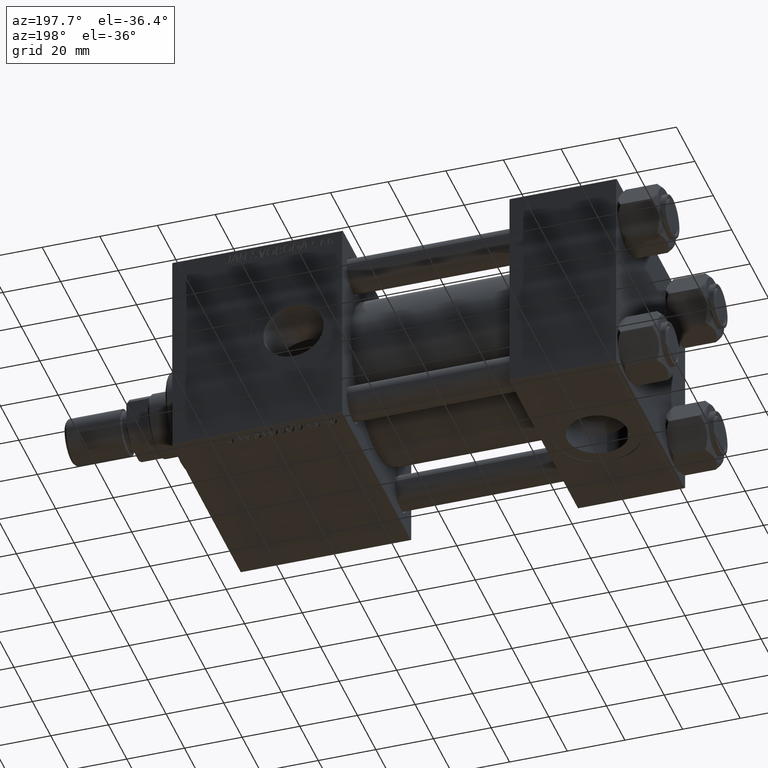
[diagram: clean part render]
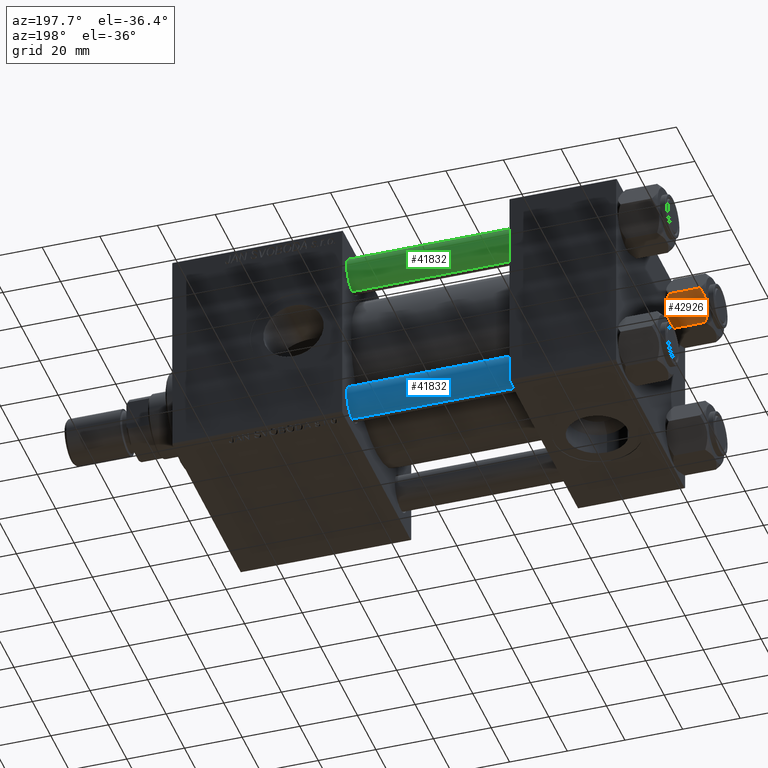
[diagram: same view with three faces highlighted in distinct colors, each labeled with its STEP entity id]
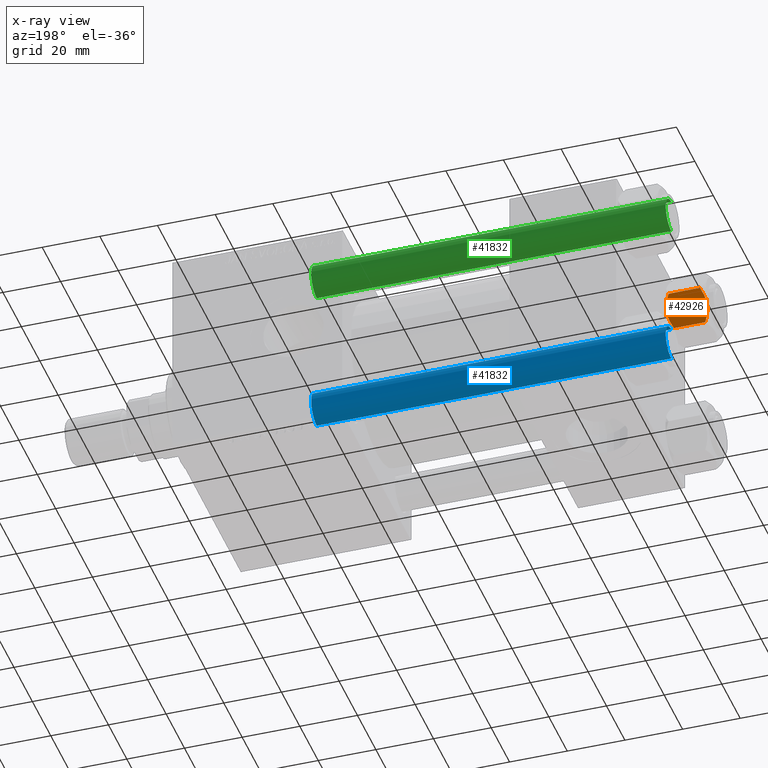
[diagram: x-ray of the same camera — body ghosted, the three highlighted faces saturated]
A machine part, auxiliary view with three faces highlighted in distinct colors.
The next image is the same camera in x-ray (body ghosted, the three faces saturated) — at least one of them is partly hidden behind the body in this view.
Their STEP definitions:

[orange] entity #42926 — the highlighted planar face has unit normal (0, -0.866, 0.5).
#74 = CARTESIAN_POINT ( 'NONE',  ( 4.900668367960796523, -10.06321519197517489, -12.87844331629023209 ) ) ;
#308 = CARTESIAN_POINT ( 'NONE',  ( -5.810000000000000497, -10.06321519197517844, -14.00000000000000000 ) ) ;
#1070 = VERTEX_POINT ( 'NONE', #41839 ) ;
#1527 = CARTESIAN_POINT ( 'NONE',  ( 1.502314598737159623E-15, -10.06321519197518199, 0.000000000000000000 ) ) ;
#2341 = DIRECTION ( 'NONE',  ( -1.492877345935290102E-16, 1.000000000000000000, 0.000000000000000000 ) ) ;
#2496 = EDGE_CURVE ( 'NONE', #8510, #28032, #19853, .T. ) ;
#3253 = CARTESIAN_POINT ( 'NONE',  ( -5.359707691559672860, -10.06321519197517844, -1.331638653804651851 ) ) ;
#3264 = LINE ( 'NONE', #41955, #13578 ) ;
#3867 = EDGE_CURVE ( 'NONE', #41476, #8510, #5160, .T. ) ;
#5160 = B_SPLINE_CURVE_WITH_KNOTS ( 'NONE', 3,
 ( #38758, #39020, #74, #8012, #23616, #46201, #17207, #9025 ),
 .UNSPECIFIED., .F., .F.,
 ( 4, 2, 2, 4 ),
 ( 0.01467889604968879332, 0.01619420351931635110, 0.01770951098894391063, 0.02074012592819902620 ),
 .UNSPECIFIED. ) ;
#7388 = CARTESIAN_POINT ( 'NONE',  ( -0.5112014849988886223, -10.06321519197517489, -13.99019602057109068 ) ) ;
#7880 = CARTESIAN_POINT ( 'NONE',  ( -3.960942496020602555, -10.06321519197517667, -13.28842716763895737 ) ) ;
#8002 = LINE ( 'NONE', #308, #9414 ) ;
#8012 = CARTESIAN_POINT ( 'NONE',  ( 3.958929922320422179, -10.06321519197517489, -13.25786014976459803 ) ) ;
#8510 = VERTEX_POINT ( 'NONE', #13466 ) ;
#9025 = CARTESIAN_POINT ( 'NONE',  ( 1.502314598737159820E-15, -10.06321519197518022, -14.00000000000000000 ) ) ;
#9414 = VECTOR ( 'NONE', #39256, 1000.000000000000000 ) ;
#9731 = CARTESIAN_POINT ( 'NONE',  ( -2.013954290287968352, -10.06321519197517844, -0.1570111679759963463 ) ) ;
#10394 = CARTESIAN_POINT ( 'NONE',  ( 1.772424303831126258, -10.06321519197517311, -0.1338870921722345175 ) ) ;
#10655 = CARTESIAN_POINT ( 'NONE',  ( 0.5112014849988879561, -10.06321519197517667, -0.009803979428909967431 ) ) ;
#10895 = CARTESIAN_POINT ( 'NONE',  ( 1.502314598737159623E-15, -10.06321519197518199, 0.000000000000000000 ) ) ;
#11664 = VERTEX_POINT ( 'NONE', #46272 ) ;
#13466 = CARTESIAN_POINT ( 'NONE',  ( 1.502314598737159820E-15, -10.06321519197518022, -14.00000000000000000 ) ) ;
#13562 = CARTESIAN_POINT ( 'NONE',  ( -4.900668367960793859, -10.06321519197517667, -1.121556683709771463 ) ) ;
#13578 = VECTOR ( 'NONE', #14273, 1000.000000000000000 ) ;
#13860 = DIRECTION ( 'NONE',  ( -1.000000000000000000, -1.492877345935290102E-16, 0.000000000000000000 ) ) ;
#13929 = EDGE_CURVE ( 'NONE', #28032, #1070, #8002, .T. ) ;
#14273 = DIRECTION ( 'NONE',  ( -0.000000000000000000, -0.000000000000000000, 1.000000000000000000 ) ) ;
#15244 = CARTESIAN_POINT ( 'NONE',  ( 5.810000000000000497, -10.06321519197517667, -1.556784808024811895 ) ) ;
#15317 = CARTESIAN_POINT ( 'NONE',  ( -2.508586450168039494, -10.06321519197517844, -13.70242473679676998 ) ) ;
#17207 = CARTESIAN_POINT ( 'NONE',  ( 1.020132157807625672, -10.06321519197517489, -14.00000000000000178 ) ) ;
#18541 = B_SPLINE_CURVE_WITH_KNOTS ( 'NONE', 3,
 ( #10895, #37781, #10655, #42157, #10394, #33911, #34164, #19330, #15244 ),
 .UNSPECIFIED., .F., .F.,
 ( 4, 2, 1, 2, 4 ),
 ( 0.02074012592819902273, 0.02149589804477578664, 0.02225167016135255402, 0.02376321439450608530, 0.02678630286081314441 ),
 .UNSPECIFIED. ) ;
#19220 = AXIS2_PLACEMENT_3D ( 'NONE', #48950, #2341, #13860 ) ;
#19330 = CARTESIAN_POINT ( 'NONE',  ( 4.908816193182381937, -10.06321519197517844, -1.106192904616003059 ) ) ;
#19853 = B_SPLINE_CURVE_WITH_KNOTS ( 'NONE', 3,
 ( #27074, #42977, #7388, #22987, #50398, #15317, #7880, #30905, #46578 ),
 .UNSPECIFIED., .F., .F.,
 ( 4, 2, 1, 2, 4 ),
 ( 0.02074012592819902620, 0.02149589804477579011, 0.02225167016135255749, 0.02376321439450608530, 0.02678630286081314441 ),
 .UNSPECIFIED. ) ;
#20276 = ORIENTED_EDGE ( 'NONE', *, *, #26743, .F. ) ;
#21799 = ORIENTED_EDGE ( 'NONE', *, *, #13929, .F. ) ;
#22646 = ORIENTED_EDGE ( 'NONE', *, *, #45616, .T. ) ;
#22987 = CARTESIAN_POINT ( 'NONE',  ( -1.018274738099085086, -10.06321519197517667, -13.95177257919929126 ) ) ;
#23616 = CARTESIAN_POINT ( 'NONE',  ( 3.474497094393254049, -10.06321519197517667, -13.42730390989572697 ) ) ;
#26658 = VERTEX_POINT ( 'NONE', #36356 ) ;
#26743 = EDGE_CURVE ( 'NONE', #1070, #11664, #41186, .T. ) ;
#27015 = ORIENTED_EDGE ( 'NONE', *, *, #2496, .F. ) ;
#27074 = CARTESIAN_POINT ( 'NONE',  ( 1.502314598737159820E-15, -10.06321519197518022, -14.00000000000000000 ) ) ;
#28032 = VERTEX_POINT ( 'NONE', #35565 ) ;
#28947 = FACE_OUTER_BOUND ( 'NONE', #40012, .T. ) ;
#30905 = CARTESIAN_POINT ( 'NONE',  ( -4.908816193182379273, -10.06321519197517667, -12.89380709538398939 ) ) ;
#31294 = ORIENTED_EDGE ( 'NONE', *, *, #3867, .F. ) ;
#32990 = CARTESIAN_POINT ( 'NONE',  ( -5.810000000000000497, -10.06321519197517844, -1.556784808024813893 ) ) ;
#33297 = PLANE ( 'NONE',  #19220 ) ;
#33911 = CARTESIAN_POINT ( 'NONE',  ( 2.508586450168040827, -10.06321519197517667, -0.2975752632032254708 ) ) ;
#34164 = CARTESIAN_POINT ( 'NONE',  ( 3.960942496020604331, -10.06321519197518022, -0.7115728323610380768 ) ) ;
#34568 = EDGE_CURVE ( 'NONE', #11664, #26658, #18541, .T. ) ;
#35565 = CARTESIAN_POINT ( 'NONE',  ( -5.810000000000000497, -10.06321519197517844, -12.44321519197518455 ) ) ;
#36356 = CARTESIAN_POINT ( 'NONE',  ( 5.810000000000000497, -10.06321519197517667, -1.556784808024811895 ) ) ;
#36611 = CARTESIAN_POINT ( 'NONE',  ( -3.958929922320420403, -10.06321519197517844, -0.7421398502353970805 ) ) ;
#36626 = CARTESIAN_POINT ( 'NONE',  ( 5.810000000000000497, -10.06321519197517667, -12.44321519197518633 ) ) ;
#37781 = CARTESIAN_POINT ( 'NONE',  ( 0.2543996698847484361, -10.06321519197517667, 4.398642095091581661E-15 ) ) ;
#38758 = CARTESIAN_POINT ( 'NONE',  ( 5.810000000000000497, -10.06321519197517667, -12.44321519197518633 ) ) ;
#39020 = CARTESIAN_POINT ( 'NONE',  ( 5.359707691559676412, -10.06321519197517844, -12.66836134619534882 ) ) ;
#39256 = DIRECTION ( 'NONE',  ( -0.000000000000000000, -0.000000000000000000, 1.000000000000000000 ) ) ;
#39738 = ORIENTED_EDGE ( 'NONE', *, *, #34568, .F. ) ;
#40012 = EDGE_LOOP ( 'NONE', ( #31294, #22646, #39738, #20276, #21799, #27015 ) ) ;
#41186 = B_SPLINE_CURVE_WITH_KNOTS ( 'NONE', 3,
 ( #32990, #3253, #13562, #36611, #49159, #9731, #41498, #1527 ),
 .UNSPECIFIED., .F., .F.,
 ( 4, 2, 2, 4 ),
 ( 0.01467889604968879332, 0.01619420351931635110, 0.01770951098894390716, 0.02074012592819902273 ),
 .UNSPECIFIED. ) ;
#41476 = VERTEX_POINT ( 'NONE', #36626 ) ;
#41498 = CARTESIAN_POINT ( 'NONE',  ( -1.020132157807625450, -10.06321519197517489, 4.052205619664572033E-15 ) ) ;
#41839 = CARTESIAN_POINT ( 'NONE',  ( -5.810000000000000497, -10.06321519197517844, -1.556784808024813893 ) ) ;
#41955 = CARTESIAN_POINT ( 'NONE',  ( 5.810000000000000497, -10.06321519197517667, -14.00000000000000000 ) ) ;
#42157 = CARTESIAN_POINT ( 'NONE',  ( 1.018274738099083976, -10.06321519197517667, -0.04822742080070548110 ) ) ;
#42926 = ADVANCED_FACE ( 'NONE', ( #28947 ), #33297, .F. ) ;
#42977 = CARTESIAN_POINT ( 'NONE',  ( -0.2543996698847483806, -10.06321519197517667, -14.00000000000000355 ) ) ;
#45616 = EDGE_CURVE ( 'NONE', #41476, #26658, #3264, .T. ) ;
#46201 = CARTESIAN_POINT ( 'NONE',  ( 2.013954290287967019, -10.06321519197517489, -13.84298883202400532 ) ) ;
#46272 = CARTESIAN_POINT ( 'NONE',  ( 1.502314598737159623E-15, -10.06321519197518199, 0.000000000000000000 ) ) ;
#46578 = CARTESIAN_POINT ( 'NONE',  ( -5.810000000000000497, -10.06321519197517844, -12.44321519197518455 ) ) ;
#48950 = CARTESIAN_POINT ( 'NONE',  ( 5.810000000000000497, -10.06321519197517667, -14.00000000000000000 ) ) ;
#49159 = CARTESIAN_POINT ( 'NONE',  ( -3.474497094393254937, -10.06321519197517844, -0.5726960901042742469 ) ) ;
#50398 = CARTESIAN_POINT ( 'NONE',  ( -1.772424303831128478, -10.06321519197517489, -13.86611290782776251 ) ) ;

[blue] entity #41832 — the highlighted cylindrical surface (edge-blend (fillet) strip) has radius 6 mm, axis along (1, -0, -0).
#2016 = ORIENTED_EDGE ( 'NONE', *, *, #31150, .T. ) ;
#2983 = EDGE_LOOP ( 'NONE', ( #2016, #43234, #30746, #24251 ) ) ;
#4662 = FACE_OUTER_BOUND ( 'NONE', #2983, .T. ) ;
#6452 = LINE ( 'NONE', #18477, #11774 ) ;
#7788 = AXIS2_PLACEMENT_3D ( 'NONE', #20274, #35887, #47679 ) ;
#7846 = DIRECTION ( 'NONE',  ( -0.000000000000000000, -0.000000000000000000, 1.000000000000000000 ) ) ;
#9157 = VERTEX_POINT ( 'NONE', #18282 ) ;
#9777 = EDGE_CURVE ( 'NONE', #25915, #19051, #13467, .T. ) ;
#10347 = LINE ( 'NONE', #40376, #11393 ) ;
#11393 = VECTOR ( 'NONE', #13921, 1000.000000000000000 ) ;
#11774 = VECTOR ( 'NONE', #22301, 1000.000000000000000 ) ;
#13467 = CIRCLE ( 'NONE', #14276, 6.000000000000000888 ) ;
#13921 = DIRECTION ( 'NONE',  ( -0.000000000000000000, -0.000000000000000000, -1.000000000000000000 ) ) ;
#14276 = AXIS2_PLACEMENT_3D ( 'NONE', #39095, #7846, #39832 ) ;
#14513 = CARTESIAN_POINT ( 'NONE',  ( 6.000000000000000888, 7.347880794884120722E-16, 0.4999999999999865663 ) ) ;
#15701 = CYLINDRICAL_SURFACE ( 'NONE', #7788, 6.000000000000000888 ) ;
#18282 = CARTESIAN_POINT ( 'NONE',  ( 6.000000000000000888, 7.347880794884120722E-16, 123.5000000000000426 ) ) ;
#18477 = CARTESIAN_POINT ( 'NONE',  ( 6.000000000000000888, 7.347880794884120722E-16, 124.0000000000000000 ) ) ;
#19051 = VERTEX_POINT ( 'NONE', #24494 ) ;
#20274 = CARTESIAN_POINT ( 'NONE',  ( 0.000000000000000000, 0.000000000000000000, 124.0000000000000000 ) ) ;
#22301 = DIRECTION ( 'NONE',  ( -0.000000000000000000, -0.000000000000000000, -1.000000000000000000 ) ) ;
#24251 = ORIENTED_EDGE ( 'NONE', *, *, #28509, .F. ) ;
#24494 = CARTESIAN_POINT ( 'NONE',  ( -6.000000000000000888, 0.000000000000000000, 0.4999999999999865663 ) ) ;
#24942 = CARTESIAN_POINT ( 'NONE',  ( 0.000000000000000000, 0.000000000000000000, 123.5000000000000426 ) ) ;
#25915 = VERTEX_POINT ( 'NONE', #14513 ) ;
#28509 = EDGE_CURVE ( 'NONE', #44726, #19051, #10347, .T. ) ;
#30746 = ORIENTED_EDGE ( 'NONE', *, *, #9777, .T. ) ;
#31150 = EDGE_CURVE ( 'NONE', #44726, #9157, #40070, .T. ) ;
#35580 = EDGE_CURVE ( 'NONE', #9157, #25915, #6452, .T. ) ;
#35887 = DIRECTION ( 'NONE',  ( -0.000000000000000000, -0.000000000000000000, -1.000000000000000000 ) ) ;
#37626 = AXIS2_PLACEMENT_3D ( 'NONE', #24942, #49283, #40594 ) ;
#38592 = CARTESIAN_POINT ( 'NONE',  ( -6.000000000000000888, 0.000000000000000000, 123.5000000000000426 ) ) ;
#39095 = CARTESIAN_POINT ( 'NONE',  ( 0.000000000000000000, 0.000000000000000000, 0.4999999999999865663 ) ) ;
#39832 = DIRECTION ( 'NONE',  ( 1.000000000000000000, 0.000000000000000000, 0.000000000000000000 ) ) ;
#40070 = CIRCLE ( 'NONE', #37626, 6.000000000000000888 ) ;
#40376 = CARTESIAN_POINT ( 'NONE',  ( -6.000000000000000888, 0.000000000000000000, 124.0000000000000000 ) ) ;
#40594 = DIRECTION ( 'NONE',  ( 1.000000000000000000, 0.000000000000000000, 0.000000000000000000 ) ) ;
#41832 = ADVANCED_FACE ( 'NONE', ( #4662 ), #15701, .T. ) ;
#43234 = ORIENTED_EDGE ( 'NONE', *, *, #35580, .T. ) ;
#44726 = VERTEX_POINT ( 'NONE', #38592 ) ;
#47679 = DIRECTION ( 'NONE',  ( -1.000000000000000000, 0.000000000000000000, 0.000000000000000000 ) ) ;
#49283 = DIRECTION ( 'NONE',  ( 0.000000000000000000, 0.000000000000000000, -1.000000000000000000 ) ) ;

[green] entity #41832 — the highlighted cylindrical surface (edge-blend (fillet) strip) has radius 6 mm, axis along (-1, -0, 0).
#2016 = ORIENTED_EDGE ( 'NONE', *, *, #31150, .T. ) ;
#2983 = EDGE_LOOP ( 'NONE', ( #2016, #43234, #30746, #24251 ) ) ;
#4662 = FACE_OUTER_BOUND ( 'NONE', #2983, .T. ) ;
#6452 = LINE ( 'NONE', #18477, #11774 ) ;
#7788 = AXIS2_PLACEMENT_3D ( 'NONE', #20274, #35887, #47679 ) ;
#7846 = DIRECTION ( 'NONE',  ( -0.000000000000000000, -0.000000000000000000, 1.000000000000000000 ) ) ;
#9157 = VERTEX_POINT ( 'NONE', #18282 ) ;
#9777 = EDGE_CURVE ( 'NONE', #25915, #19051, #13467, .T. ) ;
#10347 = LINE ( 'NONE', #40376, #11393 ) ;
#11393 = VECTOR ( 'NONE', #13921, 1000.000000000000000 ) ;
#11774 = VECTOR ( 'NONE', #22301, 1000.000000000000000 ) ;
#13467 = CIRCLE ( 'NONE', #14276, 6.000000000000000888 ) ;
#13921 = DIRECTION ( 'NONE',  ( -0.000000000000000000, -0.000000000000000000, -1.000000000000000000 ) ) ;
#14276 = AXIS2_PLACEMENT_3D ( 'NONE', #39095, #7846, #39832 ) ;
#14513 = CARTESIAN_POINT ( 'NONE',  ( 6.000000000000000888, 7.347880794884120722E-16, 0.4999999999999865663 ) ) ;
#15701 = CYLINDRICAL_SURFACE ( 'NONE', #7788, 6.000000000000000888 ) ;
#18282 = CARTESIAN_POINT ( 'NONE',  ( 6.000000000000000888, 7.347880794884120722E-16, 123.5000000000000426 ) ) ;
#18477 = CARTESIAN_POINT ( 'NONE',  ( 6.000000000000000888, 7.347880794884120722E-16, 124.0000000000000000 ) ) ;
#19051 = VERTEX_POINT ( 'NONE', #24494 ) ;
#20274 = CARTESIAN_POINT ( 'NONE',  ( 0.000000000000000000, 0.000000000000000000, 124.0000000000000000 ) ) ;
#22301 = DIRECTION ( 'NONE',  ( -0.000000000000000000, -0.000000000000000000, -1.000000000000000000 ) ) ;
#24251 = ORIENTED_EDGE ( 'NONE', *, *, #28509, .F. ) ;
#24494 = CARTESIAN_POINT ( 'NONE',  ( -6.000000000000000888, 0.000000000000000000, 0.4999999999999865663 ) ) ;
#24942 = CARTESIAN_POINT ( 'NONE',  ( 0.000000000000000000, 0.000000000000000000, 123.5000000000000426 ) ) ;
#25915 = VERTEX_POINT ( 'NONE', #14513 ) ;
#28509 = EDGE_CURVE ( 'NONE', #44726, #19051, #10347, .T. ) ;
#30746 = ORIENTED_EDGE ( 'NONE', *, *, #9777, .T. ) ;
#31150 = EDGE_CURVE ( 'NONE', #44726, #9157, #40070, .T. ) ;
#35580 = EDGE_CURVE ( 'NONE', #9157, #25915, #6452, .T. ) ;
#35887 = DIRECTION ( 'NONE',  ( -0.000000000000000000, -0.000000000000000000, -1.000000000000000000 ) ) ;
#37626 = AXIS2_PLACEMENT_3D ( 'NONE', #24942, #49283, #40594 ) ;
#38592 = CARTESIAN_POINT ( 'NONE',  ( -6.000000000000000888, 0.000000000000000000, 123.5000000000000426 ) ) ;
#39095 = CARTESIAN_POINT ( 'NONE',  ( 0.000000000000000000, 0.000000000000000000, 0.4999999999999865663 ) ) ;
#39832 = DIRECTION ( 'NONE',  ( 1.000000000000000000, 0.000000000000000000, 0.000000000000000000 ) ) ;
#40070 = CIRCLE ( 'NONE', #37626, 6.000000000000000888 ) ;
#40376 = CARTESIAN_POINT ( 'NONE',  ( -6.000000000000000888, 0.000000000000000000, 124.0000000000000000 ) ) ;
#40594 = DIRECTION ( 'NONE',  ( 1.000000000000000000, 0.000000000000000000, 0.000000000000000000 ) ) ;
#41832 = ADVANCED_FACE ( 'NONE', ( #4662 ), #15701, .T. ) ;
#43234 = ORIENTED_EDGE ( 'NONE', *, *, #35580, .T. ) ;
#44726 = VERTEX_POINT ( 'NONE', #38592 ) ;
#47679 = DIRECTION ( 'NONE',  ( -1.000000000000000000, 0.000000000000000000, 0.000000000000000000 ) ) ;
#49283 = DIRECTION ( 'NONE',  ( 0.000000000000000000, 0.000000000000000000, -1.000000000000000000 ) ) ;